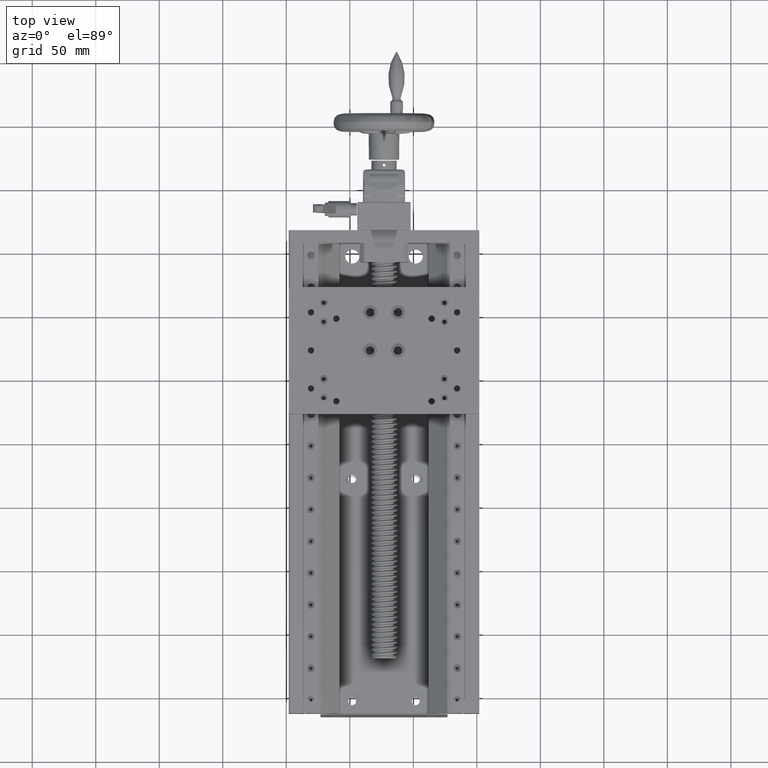
[diagram: clean part render]
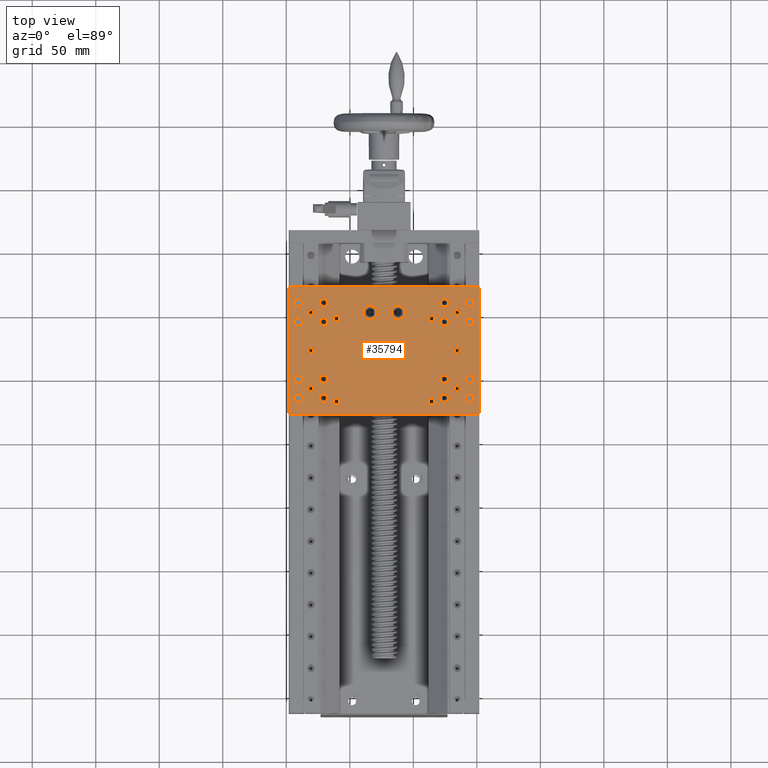
[diagram: same view with one face highlighted and labeled with its STEP entity id]
A machine part, top view. The second image highlights one B-rep face of the part: STEP entity #35794.
In plain terms, the highlighted planar face has unit normal (0, -0, 1).
Its self-contained STEP definition (entity closure, byte-faithful):
#4 = EDGE_CURVE ( 'NONE', #27922, #28650, #18210, .T. ) ;
#25 = AXIS2_PLACEMENT_3D ( 'NONE', #18048, #46215, #14091 ) ;
#145 = CARTESIAN_POINT ( 'NONE',  ( 51.92025159052296601, 121.7865302591139880, 127.5000000000011084 ) ) ;
#160 = CIRCLE ( 'NONE', #36694, 2.499999999999974243 ) ;
#250 = CARTESIAN_POINT ( 'NONE',  ( -60.57974840947702688, 195.7865302544020096, 127.5000000000022737 ) ) ;
#274 = ORIENTED_EDGE ( 'NONE', *, *, #5718, .F. ) ;
#288 = VERTEX_POINT ( 'NONE', #28809 ) ;
#335 = ORIENTED_EDGE ( 'NONE', *, *, #2510, .F. ) ;
#357 = CARTESIAN_POINT ( 'NONE',  ( -34.07974840947702688, 176.2865302544020096, 127.5000000000020037 ) ) ;
#438 = EDGE_LOOP ( 'NONE', ( #14359, #24400 ) ) ;
#604 = FACE_BOUND ( 'NONE', #39906, .T. ) ;
#719 = LINE ( 'NONE', #33614, #42688 ) ;
#757 = CARTESIAN_POINT ( 'NONE',  ( -98.07974840947703399, 219.7865302496900597, 127.5000000000027001 ) ) ;
#851 = ORIENTED_EDGE ( 'NONE', *, *, #45577, .F. ) ;
#860 = CIRCLE ( 'NONE', #37402, 3.250000000000002665 ) ;
#1075 = FACE_BOUND ( 'NONE', #21796, .T. ) ;
#1183 = CARTESIAN_POINT ( 'NONE',  ( -90.57974840947704820, 145.0365302544020381, 127.5000000000025864 ) ) ;
#1185 = AXIS2_PLACEMENT_3D ( 'NONE', #43460, #32621, #24668 ) ;
#1217 = CARTESIAN_POINT ( 'NONE',  ( -80.57974840947703399, 200.7865302544020096, 127.5000000000025011 ) ) ;
#1290 = CARTESIAN_POINT ( 'NONE',  ( 44.42025159052297312, 133.2865302544020096, 127.5000000000011937 ) ) ;
#1307 = ORIENTED_EDGE ( 'NONE', *, *, #10986, .T. ) ;
#1316 = EDGE_CURVE ( 'NONE', #14614, #12409, #18842, .T. ) ;
#1530 = EDGE_CURVE ( 'NONE', #4598, #19973, #39345, .T. ) ;
#1608 = AXIS2_PLACEMENT_3D ( 'NONE', #20255, #30553, #19331 ) ;
#1674 = CARTESIAN_POINT ( 'NONE',  ( -90.57974840947703399, 151.5365302544020381, 127.5000000000025864 ) ) ;
#1676 = AXIS2_PLACEMENT_3D ( 'NONE', #23488, #27474, #34272 ) ;
#1684 = AXIS2_PLACEMENT_3D ( 'NONE', #10683, #46307, #32857 ) ;
#1742 = CARTESIAN_POINT ( 'NONE',  ( 44.42025159052295891, 145.0365302544020381, 127.5000000000011937 ) ) ;
#1980 = ORIENTED_EDGE ( 'NONE', *, *, #24920, .F. ) ;
#2059 = EDGE_LOOP ( 'NONE', ( #28143, #335 ) ) ;
#2159 = ORIENTED_EDGE ( 'NONE', *, *, #44541, .T. ) ;
#2201 = CIRCLE ( 'NONE', #28272, 3.250000000000002665 ) ;
#2294 = EDGE_CURVE ( 'NONE', #4962, #30088, #39456, .T. ) ;
#2360 = EDGE_CURVE ( 'NONE', #12189, #23935, #44321, .T. ) ;
#2510 = EDGE_CURVE ( 'NONE', #25554, #33264, #19537, .T. ) ;
#2534 = AXIS2_PLACEMENT_3D ( 'NONE', #8202, #22410, #4735 ) ;
#2565 = DIRECTION ( 'NONE',  ( 0.7071067811865475727, 0.7071067811865474617, -7.251811311110267644E-15 ) ) ;
#2613 = CARTESIAN_POINT ( 'NONE',  ( -60.57974840947707662, 133.2865302544019812, 127.5000000000022737 ) ) ;
#2645 = EDGE_CURVE ( 'NONE', #41838, #2936, #7023, .T. ) ;
#2648 = EDGE_CURVE ( 'NONE', #10440, #4962, #27914, .T. ) ;
#2666 = AXIS2_PLACEMENT_3D ( 'NONE', #37395, #12578, #30568 ) ;
#2698 = EDGE_CURVE ( 'NONE', #34138, #44998, #23363, .T. ) ;
#2768 = VERTEX_POINT ( 'NONE', #23989 ) ;
#2825 = CARTESIAN_POINT ( 'NONE',  ( -80.57974840947707662, 173.2865302544019812, 127.5000000000025011 ) ) ;
#2929 = CARTESIAN_POINT ( 'NONE',  ( -90.57974840947703399, 208.2865302544020381, 127.5000000000026148 ) ) ;
#2936 = VERTEX_POINT ( 'NONE', #20635 ) ;
#2948 = AXIS2_PLACEMENT_3D ( 'NONE', #6489, #38051, #35214 ) ;
#2983 = CIRCLE ( 'NONE', #35012, 3.250000000000002665 ) ;
#3055 = DIRECTION ( 'NONE',  ( 0.000000000000000000, 1.000000000000000000, 0.000000000000000000 ) ) ;
#3218 = CARTESIAN_POINT ( 'NONE',  ( -85.07974840712104481, 232.7865302520460489, 127.5000000000025580 ) ) ;
#3318 = CIRCLE ( 'NONE', #15191, 5.499999999999976907 ) ;
#3376 = CARTESIAN_POINT ( 'NONE',  ( -98.07974840947703399, 120.7865302544020096, 127.5000000000026716 ) ) ;
#3383 = DIRECTION ( 'NONE',  ( -1.035198053686898557E-14, 1.283222775570023906E-16, -1.000000000000000000 ) ) ;
#3608 = CARTESIAN_POINT ( 'NONE',  ( 34.42025159052298022, 200.7865302544020096, 127.5000000000013074 ) ) ;
#3659 = EDGE_CURVE ( 'NONE', #36224, #43234, #13785, .T. ) ;
#3710 = CIRCLE ( 'NONE', #5190, 3.250000000000002665 ) ;
#3757 = AXIS2_PLACEMENT_3D ( 'NONE', #4943, #15651, #15410 ) ;
#3948 = ORIENTED_EDGE ( 'NONE', *, *, #30857, .F. ) ;
#4026 = EDGE_CURVE ( 'NONE', #11326, #5201, #10813, .T. ) ;
#4110 = EDGE_LOOP ( 'NONE', ( #24801, #1307, #33121, #10694, #36505, #25127, #35228, #43179 ) ) ;
#4163 = CARTESIAN_POINT ( 'NONE',  ( -97.07974840476506984, 120.7865302544020096, 127.5000000000026716 ) ) ;
#4197 = CARTESIAN_POINT ( 'NONE',  ( -60.57974840947703399, 130.7865302544020096, 127.5000000000022737 ) ) ;
#4198 = CARTESIAN_POINT ( 'NONE',  ( -97.07974840476506984, 220.7865302544020096, 127.5000000000026716 ) ) ;
#4199 = DIRECTION ( 'NONE',  ( 0.000000000000000000, 1.000000000000000000, 0.000000000000000000 ) ) ;
#4234 = ORIENTED_EDGE ( 'NONE', *, *, #34077, .F. ) ;
#4243 = DIRECTION ( 'NONE',  ( 0.000000000000000000, -1.000000000000000000, 0.000000000000000000 ) ) ;
#4335 = FACE_BOUND ( 'NONE', #17891, .T. ) ;
#4408 = ORIENTED_EDGE ( 'NONE', *, *, #22275, .F. ) ;
#4478 = VERTEX_POINT ( 'NONE', #25138 ) ;
#4527 = VERTEX_POINT ( 'NONE', #35235 ) ;
#4598 = VERTEX_POINT ( 'NONE', #4163 ) ;
#4613 = CARTESIAN_POINT ( 'NONE',  ( -70.57974840947703399, 148.2865302544020381, 127.5000000000023874 ) ) ;
#4723 = AXIS2_PLACEMENT_3D ( 'NONE', #44362, #22491, #36808 ) ;
#4729 = CARTESIAN_POINT ( 'NONE',  ( 34.42025159052298022, 168.2865302544020381, 127.5000000000013074 ) ) ;
#4735 = DIRECTION ( 'NONE',  ( 0.000000000000000000, 1.000000000000000000, 0.000000000000000000 ) ) ;
#4757 = CARTESIAN_POINT ( 'NONE',  ( -90.57974840947703399, 196.5365302544020096, 127.5000000000026148 ) ) ;
#4865 = CARTESIAN_POINT ( 'NONE',  ( 24.42025159052298022, 208.2865302544020381, 127.5000000000014211 ) ) ;
#4943 = CARTESIAN_POINT ( 'NONE',  ( 44.42025159052297312, 148.2865302544020381, 127.5000000000011937 ) ) ;
#4962 = VERTEX_POINT ( 'NONE', #757 ) ;
#5103 = DIRECTION ( 'NONE',  ( 0.000000000000000000, -1.000000000000000000, 0.000000000000000000 ) ) ;
#5190 = AXIS2_PLACEMENT_3D ( 'NONE', #8903, #23121, #19647 ) ;
#5199 = ORIENTED_EDGE ( 'NONE', *, *, #15454, .F. ) ;
#5201 = VERTEX_POINT ( 'NONE', #1674 ) ;
#5299 = CARTESIAN_POINT ( 'NONE',  ( 24.42025159052298022, 211.5365302544020381, 127.5000000000014211 ) ) ;
#5335 = CIRCLE ( 'NONE', #22417, 3.250000000000002665 ) ;
#5347 = CARTESIAN_POINT ( 'NONE',  ( 44.42025159052297312, 193.2865302544020096, 127.5000000000011937 ) ) ;
#5353 = DIRECTION ( 'NONE',  ( -1.035198053686898557E-14, 1.283222775570023906E-16, -1.000000000000000000 ) ) ;
#5486 = FACE_BOUND ( 'NONE', #28486, .T. ) ;
#5494 = ORIENTED_EDGE ( 'NONE', *, *, #10404, .T. ) ;
#5562 = VERTEX_POINT ( 'NONE', #42645 ) ;
#5635 = EDGE_CURVE ( 'NONE', #7101, #38543, #42132, .T. ) ;
#5699 = VERTEX_POINT ( 'NONE', #2613 ) ;
#5718 = EDGE_CURVE ( 'NONE', #28646, #29427, #3318, .T. ) ;
#5723 = CARTESIAN_POINT ( 'NONE',  ( 44.42025159052297312, 148.2865302544020381, 127.5000000000011937 ) ) ;
#5777 = EDGE_CURVE ( 'NONE', #10932, #17802, #7029, .T. ) ;
#5820 = DIRECTION ( 'NONE',  ( 1.035198053686898557E-14, -1.283222775570023906E-16, 1.000000000000000000 ) ) ;
#5852 = DIRECTION ( 'NONE',  ( 1.035198053686898557E-14, -1.283222775570023906E-16, 1.000000000000000000 ) ) ;
#5931 = ORIENTED_EDGE ( 'NONE', *, *, #4, .F. ) ;
#5964 = EDGE_CURVE ( 'NONE', #5699, #12634, #34634, .T. ) ;
#5988 = ORIENTED_EDGE ( 'NONE', *, *, #39449, .F. ) ;
#6046 = AXIS2_PLACEMENT_3D ( 'NONE', #40383, #41052, #22988 ) ;
#6102 = DIRECTION ( 'NONE',  ( 0.000000000000000000, 1.000000000000000000, 0.000000000000000000 ) ) ;
#6282 = DIRECTION ( 'NONE',  ( 1.035198053686898557E-14, -1.283222775570023906E-16, 1.000000000000000000 ) ) ;
#6456 = DIRECTION ( 'NONE',  ( 0.000000000000000000, 1.000000000000000000, 0.000000000000000000 ) ) ;
#6489 = CARTESIAN_POINT ( 'NONE',  ( 44.42025159052297312, 208.2865302544020381, 127.5000000000011937 ) ) ;
#6771 = CARTESIAN_POINT ( 'NONE',  ( 34.42025159052298022, 200.7865302544020096, 127.5000000000013074 ) ) ;
#6830 = CARTESIAN_POINT ( 'NONE',  ( -70.57974840947703399, 148.2865302544020381, 127.5000000000023874 ) ) ;
#6880 = VERTEX_POINT ( 'NONE', #38887 ) ;
#7023 = CIRCLE ( 'NONE', #32384, 3.250000000000002665 ) ;
#7029 = CIRCLE ( 'NONE', #12966, 2.499999999999974243 ) ;
#7101 = VERTEX_POINT ( 'NONE', #16250 ) ;
#7219 = CARTESIAN_POINT ( 'NONE',  ( -80.57974840947703399, 170.7865302544020096, 127.5000000000025011 ) ) ;
#7236 = CARTESIAN_POINT ( 'NONE',  ( -70.57974840947706241, 145.0365302544020381, 127.5000000000023874 ) ) ;
#7282 = CIRCLE ( 'NONE', #33388, 2.499999999999974243 ) ;
#7299 = ORIENTED_EDGE ( 'NONE', *, *, #5964, .T. ) ;
#7421 = DIRECTION ( 'NONE',  ( 0.000000000000000000, -1.000000000000000000, 0.000000000000000000 ) ) ;
#7440 = AXIS2_PLACEMENT_3D ( 'NONE', #37054, #36598, #36359 ) ;
#7523 = VERTEX_POINT ( 'NONE', #20512 ) ;
#7533 = ORIENTED_EDGE ( 'NONE', *, *, #14040, .T. ) ;
#7594 = CARTESIAN_POINT ( 'NONE',  ( -70.57974840947703399, 193.2865302544020096, 127.5000000000023874 ) ) ;
#7692 = DIRECTION ( 'NONE',  ( 1.035198053686898557E-14, -1.283222775570023906E-16, 1.000000000000000000 ) ) ;
#7774 = VERTEX_POINT ( 'NONE', #41520 ) ;
#7824 = FACE_BOUND ( 'NONE', #42363, .T. ) ;
#7826 = ORIENTED_EDGE ( 'NONE', *, *, #29641, .F. ) ;
#7858 = VERTEX_POINT ( 'NONE', #21309 ) ;
#7915 = CARTESIAN_POINT ( 'NONE',  ( 24.42025159052297312, 148.2865302544020381, 127.5000000000013927 ) ) ;
#7924 = VERTEX_POINT ( 'NONE', #39377 ) ;
#7997 = ORIENTED_EDGE ( 'NONE', *, *, #24745, .T. ) ;
#8046 = FACE_BOUND ( 'NONE', #44640, .T. ) ;
#8202 = CARTESIAN_POINT ( 'NONE',  ( -12.07974840947702688, 170.7865302544020096, 127.5000000000017764 ) ) ;
#8344 = CIRCLE ( 'NONE', #1676, 2.499999999999974243 ) ;
#8469 = CARTESIAN_POINT ( 'NONE',  ( 24.42025159052296601, 133.2865302544020096, 127.5000000000013927 ) ) ;
#8573 = EDGE_CURVE ( 'NONE', #8885, #41599, #24290, .T. ) ;
#8600 = CARTESIAN_POINT ( 'NONE',  ( -90.57974840947703399, 211.5365302544020381, 127.5000000000026148 ) ) ;
#8605 = DIRECTION ( 'NONE',  ( -1.000000000000000000, -7.380583014590811651E-17, 1.038393218549974683E-14 ) ) ;
#8823 = ORIENTED_EDGE ( 'NONE', *, *, #19725, .F. ) ;
#8885 = VERTEX_POINT ( 'NONE', #20685 ) ;
#8897 = ORIENTED_EDGE ( 'NONE', *, *, #5777, .T. ) ;
#8903 = CARTESIAN_POINT ( 'NONE',  ( -90.57974840947703399, 133.2865302544020096, 127.5000000000025864 ) ) ;
#8984 = DIRECTION ( 'NONE',  ( 1.035198053686898557E-14, -1.283222775570023906E-16, 1.000000000000000000 ) ) ;
#9151 = EDGE_CURVE ( 'NONE', #2768, #7774, #22734, .T. ) ;
#9194 = DIRECTION ( 'NONE',  ( 1.035198053686898557E-14, -1.283222775569903851E-16, 1.000000000000000000 ) ) ;
#9225 = EDGE_LOOP ( 'NONE', ( #18935, #13306 ) ) ;
#9250 = CARTESIAN_POINT ( 'NONE',  ( 44.42025159052297312, 211.5365302544020381, 127.5000000000011937 ) ) ;
#9453 = VERTEX_POINT ( 'NONE', #357 ) ;
#9652 = DIRECTION ( 'NONE',  ( 0.000000000000000000, 1.000000000000000000, 0.000000000000000000 ) ) ;
#9727 = CIRCLE ( 'NONE', #38136, 5.499999999999976907 ) ;
#9737 = DIRECTION ( 'NONE',  ( 0.000000000000000000, 1.000000000000000000, 0.000000000000000000 ) ) ;
#9772 = CIRCLE ( 'NONE', #41939, 3.250000000000002665 ) ;
#9794 = DIRECTION ( 'NONE',  ( 0.000000000000000000, 1.000000000000000000, 0.000000000000000000 ) ) ;
#9813 = CIRCLE ( 'NONE', #1608, 3.250000000000002665 ) ;
#9945 = DIRECTION ( 'NONE',  ( 1.035198053686898557E-14, -1.283222775570023906E-16, 1.000000000000000000 ) ) ;
#10067 = CARTESIAN_POINT ( 'NONE',  ( -70.57974840947703399, 196.5365302544020096, 127.5000000000023874 ) ) ;
#10274 = EDGE_CURVE ( 'NONE', #5201, #11326, #39354, .T. ) ;
#10320 = AXIS2_PLACEMENT_3D ( 'NONE', #250, #39275, #24481 ) ;
#10401 = VERTEX_POINT ( 'NONE', #7236 ) ;
#10404 = EDGE_CURVE ( 'NONE', #31713, #7924, #25847, .T. ) ;
#10440 = VERTEX_POINT ( 'NONE', #4198 ) ;
#10482 = DIRECTION ( 'NONE',  ( -1.035198053686898557E-14, 1.283222775570023906E-16, -1.000000000000000000 ) ) ;
#10528 = CIRCLE ( 'NONE', #36675, 3.250000000000002665 ) ;
#10638 = ORIENTED_EDGE ( 'NONE', *, *, #28001, .T. ) ;
#10683 = CARTESIAN_POINT ( 'NONE',  ( 34.42025159052298022, 140.7865302544020096, 127.5000000000012790 ) ) ;
#10694 = ORIENTED_EDGE ( 'NONE', *, *, #2648, .T. ) ;
#10702 = CARTESIAN_POINT ( 'NONE',  ( 24.42025159052297312, 193.2865302544020096, 127.5000000000014211 ) ) ;
#10743 = CARTESIAN_POINT ( 'NONE',  ( -34.07974840947706241, 165.2865302544020381, 127.5000000000020037 ) ) ;
#10764 = CARTESIAN_POINT ( 'NONE',  ( 34.42025159052292338, 173.2865302544019812, 127.5000000000013074 ) ) ;
#10813 = CIRCLE ( 'NONE', #1185, 3.250000000000002665 ) ;
#10862 = FACE_BOUND ( 'NONE', #40597, .T. ) ;
#10932 = VERTEX_POINT ( 'NONE', #33880 ) ;
#10961 = AXIS2_PLACEMENT_3D ( 'NONE', #21428, #35738, #17940 ) ;
#10986 = EDGE_CURVE ( 'NONE', #5562, #27320, #19138, .T. ) ;
#11020 = ORIENTED_EDGE ( 'NONE', *, *, #25350, .T. ) ;
#11075 = CARTESIAN_POINT ( 'NONE',  ( -34.07974840947702688, 170.7865302544020096, 127.5000000000020037 ) ) ;
#11079 = FACE_BOUND ( 'NONE', #27562, .T. ) ;
#11159 = DIRECTION ( 'NONE',  ( 1.035198053686898557E-14, -1.283222775570023906E-16, 1.000000000000000000 ) ) ;
#11185 = CIRCLE ( 'NONE', #32831, 2.499999999999974243 ) ;
#11326 = VERTEX_POINT ( 'NONE', #1183 ) ;
#11338 = AXIS2_PLACEMENT_3D ( 'NONE', #32513, #32285, #43338 ) ;
#11365 = ORIENTED_EDGE ( 'NONE', *, *, #30707, .F. ) ;
#11442 = DIRECTION ( 'NONE',  ( 0.000000000000000000, 1.000000000000000000, 0.000000000000000000 ) ) ;
#11455 = DIRECTION ( 'NONE',  ( -1.035198053686898557E-14, 1.283222775570023906E-16, -1.000000000000000000 ) ) ;
#11540 = ORIENTED_EDGE ( 'NONE', *, *, #20724, .F. ) ;
#11542 = FACE_BOUND ( 'NONE', #22370, .T. ) ;
#11629 = DIRECTION ( 'NONE',  ( 0.000000000000000000, 1.000000000000000000, 0.000000000000000000 ) ) ;
#11829 = VERTEX_POINT ( 'NONE', #5299 ) ;
#11847 = AXIS2_PLACEMENT_3D ( 'NONE', #6771, #10482, #24018 ) ;
#11903 = CARTESIAN_POINT ( 'NONE',  ( 34.42025159052292338, 203.2865302544019812, 127.5000000000013074 ) ) ;
#12187 = VERTEX_POINT ( 'NONE', #37020 ) ;
#12189 = VERTEX_POINT ( 'NONE', #15487 ) ;
#12247 = DIRECTION ( 'NONE',  ( 0.000000000000000000, -1.000000000000000000, 0.000000000000000000 ) ) ;
#12395 = ORIENTED_EDGE ( 'NONE', *, *, #23982, .F. ) ;
#12409 = VERTEX_POINT ( 'NONE', #30091 ) ;
#12505 = DIRECTION ( 'NONE',  ( 1.035198053686898557E-14, -1.283222775570023906E-16, 1.000000000000000000 ) ) ;
#12564 = DIRECTION ( 'NONE',  ( 1.035198053686898557E-14, -1.283222775570023906E-16, 1.000000000000000000 ) ) ;
#12578 = DIRECTION ( 'NONE',  ( -1.035198053686898557E-14, 1.283222775570023906E-16, -1.000000000000000000 ) ) ;
#12634 = VERTEX_POINT ( 'NONE', #24204 ) ;
#12671 = DIRECTION ( 'NONE',  ( 1.035198053686898557E-14, -1.283222775570023906E-16, 1.000000000000000000 ) ) ;
#12850 = CIRCLE ( 'NONE', #40530, 3.250000000000002665 ) ;
#12936 = ORIENTED_EDGE ( 'NONE', *, *, #20713, .T. ) ;
#12966 = AXIS2_PLACEMENT_3D ( 'NONE', #31985, #35281, #17721 ) ;
#12977 = DIRECTION ( 'NONE',  ( 1.035198053686898557E-14, -1.283222775570023906E-16, 1.000000000000000000 ) ) ;
#12992 = VERTEX_POINT ( 'NONE', #145 ) ;
#13072 = CARTESIAN_POINT ( 'NONE',  ( 44.42025159052297312, 133.2865302544020096, 127.5000000000011937 ) ) ;
#13087 = CARTESIAN_POINT ( 'NONE',  ( -70.57974840947701978, 208.2865302544020381, 127.5000000000023874 ) ) ;
#13129 = VERTEX_POINT ( 'NONE', #19197 ) ;
#13294 = CARTESIAN_POINT ( 'NONE',  ( 50.92025158581100897, 220.7865302544020381, 127.5000000000011369 ) ) ;
#13306 = ORIENTED_EDGE ( 'NONE', *, *, #43745, .F. ) ;
#13327 = CARTESIAN_POINT ( 'NONE',  ( 24.42025159052295891, 145.0365302544020381, 127.5000000000013927 ) ) ;
#13472 = CARTESIAN_POINT ( 'NONE',  ( -70.57974840947703399, 193.2865302544020096, 127.5000000000023874 ) ) ;
#13719 = AXIS2_PLACEMENT_3D ( 'NONE', #16518, #12564, #16069 ) ;
#13785 = CIRCLE ( 'NONE', #36938, 3.250000000000002665 ) ;
#13902 = DIRECTION ( 'NONE',  ( 0.000000000000000000, 1.000000000000000000, 0.000000000000000000 ) ) ;
#13946 = CARTESIAN_POINT ( 'NONE',  ( -70.57974840947703399, 133.2865302544020096, 127.5000000000023874 ) ) ;
#13959 = DIRECTION ( 'NONE',  ( -1.035198053686898557E-14, 1.283222775570023906E-16, -1.000000000000000000 ) ) ;
#14040 = EDGE_CURVE ( 'NONE', #17802, #10932, #44750, .T. ) ;
#14091 = DIRECTION ( 'NONE',  ( 0.000000000000000000, 1.000000000000000000, 0.000000000000000000 ) ) ;
#14139 = CIRCLE ( 'NONE', #26073, 3.250000000000002665 ) ;
#14284 = AXIS2_PLACEMENT_3D ( 'NONE', #31668, #9945, #13902 ) ;
#14352 = AXIS2_PLACEMENT_3D ( 'NONE', #7219, #13959, #20958 ) ;
#14359 = ORIENTED_EDGE ( 'NONE', *, *, #25742, .T. ) ;
#14418 = ORIENTED_EDGE ( 'NONE', *, *, #28206, .T. ) ;
#14530 = VERTEX_POINT ( 'NONE', #41228 ) ;
#14614 = VERTEX_POINT ( 'NONE', #37937 ) ;
#14625 = ORIENTED_EDGE ( 'NONE', *, *, #42690, .F. ) ;
#14713 = CARTESIAN_POINT ( 'NONE',  ( -12.07974840947706419, 165.2865302544020381, 127.5000000000017764 ) ) ;
#14864 = CIRCLE ( 'NONE', #38810, 3.250000000000002665 ) ;
#14928 = DIRECTION ( 'NONE',  ( 1.035198053686898557E-14, -1.283222775570023906E-16, 1.000000000000000000 ) ) ;
#15108 = ORIENTED_EDGE ( 'NONE', *, *, #15622, .F. ) ;
#15136 = AXIS2_PLACEMENT_3D ( 'NONE', #10702, #32196, #17693 ) ;
#15181 = VECTOR ( 'NONE', #42022, 1000.000000000000000 ) ;
#15191 = AXIS2_PLACEMENT_3D ( 'NONE', #41165, #31054, #31280 ) ;
#15249 = EDGE_CURVE ( 'NONE', #28778, #4527, #28911, .T. ) ;
#15268 = DIRECTION ( 'NONE',  ( 1.035198053686898557E-14, -1.283222775570023906E-16, 1.000000000000000000 ) ) ;
#15401 = VERTEX_POINT ( 'NONE', #43045 ) ;
#15410 = DIRECTION ( 'NONE',  ( 0.000000000000000000, 1.000000000000000000, 0.000000000000000000 ) ) ;
#15454 = EDGE_CURVE ( 'NONE', #13129, #26371, #16370, .T. ) ;
#15487 = CARTESIAN_POINT ( 'NONE',  ( 34.42025159052298022, 138.2865302544020381, 127.5000000000012790 ) ) ;
#15574 = CARTESIAN_POINT ( 'NONE',  ( 24.42025159052298022, 208.2865302544020381, 127.5000000000014211 ) ) ;
#15622 = EDGE_CURVE ( 'NONE', #288, #32432, #41040, .T. ) ;
#15651 = DIRECTION ( 'NONE',  ( 1.035198053686898557E-14, -1.283222775570023906E-16, 1.000000000000000000 ) ) ;
#15806 = CARTESIAN_POINT ( 'NONE',  ( 14.42025159052291450, 133.2865302544019812, 127.5000000000015064 ) ) ;
#15952 = DIRECTION ( 'NONE',  ( 1.035198053686898557E-14, -1.283222775570023906E-16, 1.000000000000000000 ) ) ;
#16069 = DIRECTION ( 'NONE',  ( 0.000000000000000000, 1.000000000000000000, 0.000000000000000000 ) ) ;
#16250 = CARTESIAN_POINT ( 'NONE',  ( -12.07974840947702688, 176.2865302544020096, 127.5000000000017764 ) ) ;
#16285 = VERTEX_POINT ( 'NONE', #2825 ) ;
#16370 = CIRCLE ( 'NONE', #39552, 3.250000000000002665 ) ;
#16391 = EDGE_CURVE ( 'NONE', #7858, #16808, #43368, .T. ) ;
#16403 = FACE_BOUND ( 'NONE', #37552, .T. ) ;
#16406 = VERTEX_POINT ( 'NONE', #39048 ) ;
#16518 = CARTESIAN_POINT ( 'NONE',  ( 24.42025159052297312, 148.2865302544020381, 127.5000000000013927 ) ) ;
#16789 = DIRECTION ( 'NONE',  ( 0.000000000000000000, 1.000000000000000000, 0.000000000000000000 ) ) ;
#16808 = VERTEX_POINT ( 'NONE', #11903 ) ;
#16999 = CARTESIAN_POINT ( 'NONE',  ( -70.57974840947701978, 208.2865302544020381, 127.5000000000023874 ) ) ;
#17169 = CARTESIAN_POINT ( 'NONE',  ( 14.42025159052296601, 130.7865302544020096, 127.5000000000015064 ) ) ;
#17226 = ORIENTED_EDGE ( 'NONE', *, *, #16391, .T. ) ;
#17304 = EDGE_CURVE ( 'NONE', #28650, #27922, #30556, .T. ) ;
#17361 = CARTESIAN_POINT ( 'NONE',  ( -12.07974840947702688, 170.7865302544020096, 127.5000000000017764 ) ) ;
#17466 = VERTEX_POINT ( 'NONE', #19938 ) ;
#17678 = VECTOR ( 'NONE', #19611, 1000.000000000000000 ) ;
#17693 = DIRECTION ( 'NONE',  ( 0.000000000000000000, 1.000000000000000000, 0.000000000000000000 ) ) ;
#17721 = DIRECTION ( 'NONE',  ( 0.000000000000000000, -1.000000000000000000, 0.000000000000000000 ) ) ;
#17767 = EDGE_CURVE ( 'NONE', #12187, #7523, #11185, .T. ) ;
#17802 = VERTEX_POINT ( 'NONE', #36311 ) ;
#17844 = EDGE_LOOP ( 'NONE', ( #31593, #11540 ) ) ;
#17854 = EDGE_CURVE ( 'NONE', #15401, #17466, #28350, .T. ) ;
#17891 = EDGE_LOOP ( 'NONE', ( #1980, #4234 ) ) ;
#17940 = DIRECTION ( 'NONE',  ( 0.000000000000000000, -1.000000000000000000, 0.000000000000000000 ) ) ;
#17977 = ORIENTED_EDGE ( 'NONE', *, *, #21446, .T. ) ;
#18048 = CARTESIAN_POINT ( 'NONE',  ( -70.57974840947703399, 133.2865302544020096, 127.5000000000023874 ) ) ;
#18210 = CIRCLE ( 'NONE', #21934, 3.250000000000002665 ) ;
#18340 = CARTESIAN_POINT ( 'NONE',  ( -90.57974840947703399, 193.2865302544020096, 127.5000000000026148 ) ) ;
#18398 = DIRECTION ( 'NONE',  ( 1.007490921181384814E-16, 1.000000000000000000, 1.283222775569893497E-16 ) ) ;
#18402 = ORIENTED_EDGE ( 'NONE', *, *, #4026, .F. ) ;
#18595 = CIRCLE ( 'NONE', #3757, 3.250000000000002665 ) ;
#18671 = VECTOR ( 'NONE', #18398, 1000.000000000000000 ) ;
#18733 = CARTESIAN_POINT ( 'NONE',  ( 50.92025158581100897, 120.7865302544020238, 127.5000000000011084 ) ) ;
#18761 = FACE_BOUND ( 'NONE', #22557, .T. ) ;
#18842 = CIRCLE ( 'NONE', #4723, 5.499999999999976907 ) ;
#18935 = ORIENTED_EDGE ( 'NONE', *, *, #2645, .F. ) ;
#18991 = CARTESIAN_POINT ( 'NONE',  ( 14.42025159052297312, 195.7865302544020096, 127.5000000000015064 ) ) ;
#18994 = FACE_BOUND ( 'NONE', #17844, .T. ) ;
#19001 = DIRECTION ( 'NONE',  ( 0.000000000000000000, 1.000000000000000000, 0.000000000000000000 ) ) ;
#19004 = EDGE_CURVE ( 'NONE', #43234, #36224, #2983, .T. ) ;
#19128 = AXIS2_PLACEMENT_3D ( 'NONE', #42116, #30346, #16789 ) ;
#19138 = LINE ( 'NONE', #44514, #17678 ) ;
#19197 = CARTESIAN_POINT ( 'NONE',  ( 44.42025159052297312, 151.5365302544020381, 127.5000000000011937 ) ) ;
#19221 = DIRECTION ( 'NONE',  ( -1.035198053686898557E-14, 1.283222775570023906E-16, -1.000000000000000000 ) ) ;
#19249 = DIRECTION ( 'NONE',  ( 0.000000000000000000, 1.000000000000000000, 0.000000000000000000 ) ) ;
#19331 = DIRECTION ( 'NONE',  ( 0.000000000000000000, 1.000000000000000000, 0.000000000000000000 ) ) ;
#19380 = EDGE_LOOP ( 'NONE', ( #17226, #41246 ) ) ;
#19483 = DIRECTION ( 'NONE',  ( -1.035198053686898557E-14, 1.283222775570023906E-16, -1.000000000000000000 ) ) ;
#19505 = EDGE_LOOP ( 'NONE', ( #23276, #7826 ) ) ;
#19537 = CIRCLE ( 'NONE', #45802, 3.250000000000002665 ) ;
#19611 = DIRECTION ( 'NONE',  ( -0.7071067811865474617, 0.7071067811865475727, 7.433286416385967466E-15 ) ) ;
#19647 = DIRECTION ( 'NONE',  ( 0.000000000000000000, 1.000000000000000000, 0.000000000000000000 ) ) ;
#19682 = DIRECTION ( 'NONE',  ( 0.000000000000000000, 1.000000000000000000, 0.000000000000000000 ) ) ;
#19690 = FACE_BOUND ( 'NONE', #38145, .T. ) ;
#19717 = DIRECTION ( 'NONE',  ( 1.035198053686898557E-14, -1.283222775570023906E-16, 1.000000000000000000 ) ) ;
#19725 = EDGE_CURVE ( 'NONE', #35869, #22199, #2201, .T. ) ;
#19938 = CARTESIAN_POINT ( 'NONE',  ( -90.57974840947704820, 130.0365302544020096, 127.5000000000025864 ) ) ;
#19952 = CARTESIAN_POINT ( 'NONE',  ( 24.42025159052296601, 205.0365302544020096, 127.5000000000014211 ) ) ;
#19973 = VERTEX_POINT ( 'NONE', #18733 ) ;
#20203 = ORIENTED_EDGE ( 'NONE', *, *, #19004, .F. ) ;
#20231 = CIRCLE ( 'NONE', #26945, 2.499999999999974243 ) ;
#20255 = CARTESIAN_POINT ( 'NONE',  ( 44.42025159052297312, 193.2865302544020096, 127.5000000000011937 ) ) ;
#20313 = EDGE_CURVE ( 'NONE', #34298, #10401, #14139, .T. ) ;
#20390 = CARTESIAN_POINT ( 'NONE',  ( -85.07974840712107323, 108.7865302567579846, 127.5000000000025295 ) ) ;
#20458 = EDGE_CURVE ( 'NONE', #26371, #13129, #18595, .T. ) ;
#20512 = CARTESIAN_POINT ( 'NONE',  ( 14.42025159052292160, 198.2865302544019812, 127.5000000000015064 ) ) ;
#20635 = CARTESIAN_POINT ( 'NONE',  ( 24.42025159052295180, 130.0365302544020096, 127.5000000000013927 ) ) ;
#20680 = CARTESIAN_POINT ( 'NONE',  ( 24.42025159052297312, 193.2865302544020096, 127.5000000000014211 ) ) ;
#20685 = CARTESIAN_POINT ( 'NONE',  ( -90.57974840947704820, 205.0365302544020096, 127.5000000000026148 ) ) ;
#20695 = DIRECTION ( 'NONE',  ( 1.035198053686898557E-14, -1.283222775570023906E-16, 1.000000000000000000 ) ) ;
#20710 = CIRCLE ( 'NONE', #37920, 2.499999999999974243 ) ;
#20711 = ORIENTED_EDGE ( 'NONE', *, *, #20313, .F. ) ;
#20713 = EDGE_CURVE ( 'NONE', #12634, #5699, #40318, .T. ) ;
#20724 = EDGE_CURVE ( 'NONE', #44998, #34138, #14864, .T. ) ;
#20758 = EDGE_LOOP ( 'NONE', ( #5494, #14418 ) ) ;
#20861 = CIRCLE ( 'NONE', #24645, 2.499999999999974243 ) ;
#20881 = CARTESIAN_POINT ( 'NONE',  ( -70.57974840947703399, 151.5365302544020381, 127.5000000000023874 ) ) ;
#20909 = CIRCLE ( 'NONE', #6046, 5.499999999999976907 ) ;
#20958 = DIRECTION ( 'NONE',  ( 0.000000000000000000, -1.000000000000000000, 0.000000000000000000 ) ) ;
#21180 = CARTESIAN_POINT ( 'NONE',  ( 24.42025159052297312, 196.5365302544020096, 127.5000000000014211 ) ) ;
#21309 = CARTESIAN_POINT ( 'NONE',  ( 34.42025159052298022, 198.2865302544020381, 127.5000000000013074 ) ) ;
#21428 = CARTESIAN_POINT ( 'NONE',  ( -80.57974840947703399, 200.7865302544020096, 127.5000000000025011 ) ) ;
#21446 = EDGE_CURVE ( 'NONE', #34540, #38536, #20861, .T. ) ;
#21475 = CIRCLE ( 'NONE', #33448, 2.499999999999974243 ) ;
#21676 = LINE ( 'NONE', #29402, #18671 ) ;
#21796 = EDGE_LOOP ( 'NONE', ( #20203, #31718 ) ) ;
#21909 = AXIS2_PLACEMENT_3D ( 'NONE', #44457, #5353, #23971 ) ;
#21934 = AXIS2_PLACEMENT_3D ( 'NONE', #18340, #22055, #19249 ) ;
#21985 = CARTESIAN_POINT ( 'NONE',  ( -34.07974840947705530, 195.2865302544020381, 127.5000000000020037 ) ) ;
#22018 = FACE_BOUND ( 'NONE', #22044, .T. ) ;
#22044 = EDGE_LOOP ( 'NONE', ( #11020, #17977 ) ) ;
#22055 = DIRECTION ( 'NONE',  ( 1.035198053686898557E-14, -1.283222775570023906E-16, 1.000000000000000000 ) ) ;
#22139 = DIRECTION ( 'NONE',  ( 0.000000000000000000, 1.000000000000000000, 0.000000000000000000 ) ) ;
#22199 = VERTEX_POINT ( 'NONE', #21180 ) ;
#22244 = FACE_BOUND ( 'NONE', #23610, .T. ) ;
#22275 = EDGE_CURVE ( 'NONE', #11829, #37101, #5335, .T. ) ;
#22370 = EDGE_LOOP ( 'NONE', ( #45644, #30108 ) ) ;
#22410 = DIRECTION ( 'NONE',  ( 1.035198053686898557E-14, -1.283222775570023906E-16, 1.000000000000000000 ) ) ;
#22417 = AXIS2_PLACEMENT_3D ( 'NONE', #4865, #43487, #43944 ) ;
#22473 = ORIENTED_EDGE ( 'NONE', *, *, #17304, .F. ) ;
#22491 = DIRECTION ( 'NONE',  ( 1.035198053686898557E-14, -1.283222775570023906E-16, 1.000000000000000000 ) ) ;
#22557 = EDGE_LOOP ( 'NONE', ( #44067, #851 ) ) ;
#22714 = CARTESIAN_POINT ( 'NONE',  ( 24.42025159052295891, 190.0365302544020096, 127.5000000000014211 ) ) ;
#22734 = CIRCLE ( 'NONE', #2666, 2.499999999999974243 ) ;
#22807 = DIRECTION ( 'NONE',  ( 1.035198053686898557E-14, -1.283222775570023906E-16, 1.000000000000000000 ) ) ;
#22988 = DIRECTION ( 'NONE',  ( 0.000000000000000000, 1.000000000000000000, 0.000000000000000000 ) ) ;
#22994 = CIRCLE ( 'NONE', #2948, 3.250000000000002665 ) ;
#23121 = DIRECTION ( 'NONE',  ( 1.035198053686898557E-14, -1.283222775570023906E-16, 1.000000000000000000 ) ) ;
#23191 = AXIS2_PLACEMENT_3D ( 'NONE', #17361, #45527, #9652 ) ;
#23249 = AXIS2_PLACEMENT_3D ( 'NONE', #16999, #5820, #3055 ) ;
#23276 = ORIENTED_EDGE ( 'NONE', *, *, #17854, .F. ) ;
#23281 = EDGE_LOOP ( 'NONE', ( #20711, #5988 ) ) ;
#23363 = CIRCLE ( 'NONE', #13719, 3.250000000000002665 ) ;
#23380 = DIRECTION ( 'NONE',  ( 1.035198053686898557E-14, -1.283222775570023906E-16, 1.000000000000000000 ) ) ;
#23405 = FACE_BOUND ( 'NONE', #20758, .T. ) ;
#23488 = CARTESIAN_POINT ( 'NONE',  ( 34.42025159052298022, 170.7865302544020096, 127.5000000000013074 ) ) ;
#23610 = EDGE_LOOP ( 'NONE', ( #15108, #3948 ) ) ;
#23799 = ORIENTED_EDGE ( 'NONE', *, *, #41911, .F. ) ;
#23935 = VERTEX_POINT ( 'NONE', #35640 ) ;
#23955 = CIRCLE ( 'NONE', #30692, 3.250000000000002665 ) ;
#23971 = DIRECTION ( 'NONE',  ( 0.000000000000000000, -1.000000000000000000, 0.000000000000000000 ) ) ;
#23982 = EDGE_CURVE ( 'NONE', #30497, #9453, #9727, .T. ) ;
#23989 = CARTESIAN_POINT ( 'NONE',  ( -80.57974840947703399, 138.2865302544020381, 127.5000000000024727 ) ) ;
#24018 = DIRECTION ( 'NONE',  ( 0.000000000000000000, -1.000000000000000000, 0.000000000000000000 ) ) ;
#24029 = CIRCLE ( 'NONE', #33766, 3.250000000000002665 ) ;
#24042 = EDGE_CURVE ( 'NONE', #7523, #12187, #35106, .T. ) ;
#24131 = AXIS2_PLACEMENT_3D ( 'NONE', #26693, #9194, #30208 ) ;
#24204 = CARTESIAN_POINT ( 'NONE',  ( -60.57974840947703399, 128.2865302544020381, 127.5000000000022737 ) ) ;
#24241 = CARTESIAN_POINT ( 'NONE',  ( -98.07974840947703399, 121.7865302591139596, 127.5000000000026716 ) ) ;
#24290 = CIRCLE ( 'NONE', #36273, 3.250000000000002665 ) ;
#24338 = EDGE_CURVE ( 'NONE', #27320, #10440, #719, .T. ) ;
#24400 = ORIENTED_EDGE ( 'NONE', *, *, #24826, .T. ) ;
#24450 = DIRECTION ( 'NONE',  ( -1.035198053686898557E-14, 1.283222775570023906E-16, -1.000000000000000000 ) ) ;
#24481 = DIRECTION ( 'NONE',  ( 0.000000000000000000, -1.000000000000000000, 0.000000000000000000 ) ) ;
#24525 = EDGE_CURVE ( 'NONE', #19973, #12992, #34544, .T. ) ;
#24645 = AXIS2_PLACEMENT_3D ( 'NONE', #36422, #19483, #33762 ) ;
#24668 = DIRECTION ( 'NONE',  ( 0.000000000000000000, 1.000000000000000000, 0.000000000000000000 ) ) ;
#24688 = EDGE_LOOP ( 'NONE', ( #31372, #8823 ) ) ;
#24745 = EDGE_CURVE ( 'NONE', #23935, #12189, #26935, .T. ) ;
#24801 = ORIENTED_EDGE ( 'NONE', *, *, #41528, .T. ) ;
#24826 = EDGE_CURVE ( 'NONE', #32152, #4478, #160, .T. ) ;
#24920 = EDGE_CURVE ( 'NONE', #29744, #14530, #31446, .T. ) ;
#24921 = CARTESIAN_POINT ( 'NONE',  ( 34.42025159052298022, 140.7865302544020096, 127.5000000000012790 ) ) ;
#25006 = DIRECTION ( 'NONE',  ( 0.000000000000000000, 1.000000000000000000, 0.000000000000000000 ) ) ;
#25088 = FACE_BOUND ( 'NONE', #19380, .T. ) ;
#25127 = ORIENTED_EDGE ( 'NONE', *, *, #46105, .T. ) ;
#25138 = CARTESIAN_POINT ( 'NONE',  ( 14.42025159052296601, 128.2865302544020381, 127.5000000000015064 ) ) ;
#25323 = DIRECTION ( 'NONE',  ( 1.035198053686898557E-14, -1.283222775570023906E-16, 1.000000000000000000 ) ) ;
#25350 = EDGE_CURVE ( 'NONE', #38536, #34540, #8344, .T. ) ;
#25462 = DIRECTION ( 'NONE',  ( 1.035198053686898557E-14, -1.283222775570023906E-16, 1.000000000000000000 ) ) ;
#25527 = CARTESIAN_POINT ( 'NONE',  ( 14.42025159052297312, 195.7865302544020096, 127.5000000000015064 ) ) ;
#25550 = FACE_BOUND ( 'NONE', #2059, .T. ) ;
#25554 = VERTEX_POINT ( 'NONE', #43456 ) ;
#25570 = CIRCLE ( 'NONE', #15136, 3.250000000000002665 ) ;
#25604 = CARTESIAN_POINT ( 'NONE',  ( -98.07974840947703399, 220.7865302544020096, 127.5000000000027001 ) ) ;
#25742 = EDGE_CURVE ( 'NONE', #4478, #32152, #33736, .T. ) ;
#25778 = FACE_BOUND ( 'NONE', #19505, .T. ) ;
#25826 = CARTESIAN_POINT ( 'NONE',  ( 44.42025159052297312, 208.2865302544020381, 127.5000000000011937 ) ) ;
#25847 = CIRCLE ( 'NONE', #10961, 2.499999999999974243 ) ;
#26005 = FACE_BOUND ( 'NONE', #438, .T. ) ;
#26073 = AXIS2_PLACEMENT_3D ( 'NONE', #6830, #25462, #25006 ) ;
#26120 = ORIENTED_EDGE ( 'NONE', *, *, #1316, .F. ) ;
#26293 = DIRECTION ( 'NONE',  ( 0.000000000000000000, 1.000000000000000000, 0.000000000000000000 ) ) ;
#26371 = VERTEX_POINT ( 'NONE', #1742 ) ;
#26561 = DIRECTION ( 'NONE',  ( 0.000000000000000000, 1.000000000000000000, 0.000000000000000000 ) ) ;
#26693 = CARTESIAN_POINT ( 'NONE',  ( -23.07974840947702688, 170.7865302544020096, 127.5000000000018900 ) ) ;
#26747 = CIRCLE ( 'NONE', #30495, 3.250000000000002665 ) ;
#26935 = CIRCLE ( 'NONE', #43455, 2.499999999999974243 ) ;
#26945 = AXIS2_PLACEMENT_3D ( 'NONE', #44822, #19221, #12247 ) ;
#27222 = EDGE_LOOP ( 'NONE', ( #4408, #28930 ) ) ;
#27314 = DIRECTION ( 'NONE',  ( 1.035198053686898557E-14, -1.283222775570023906E-16, 1.000000000000000000 ) ) ;
#27315 = ORIENTED_EDGE ( 'NONE', *, *, #5635, .F. ) ;
#27320 = VERTEX_POINT ( 'NONE', #13294 ) ;
#27474 = DIRECTION ( 'NONE',  ( -1.035198053686898557E-14, 1.283222775570023906E-16, -1.000000000000000000 ) ) ;
#27562 = EDGE_LOOP ( 'NONE', ( #22473, #5931 ) ) ;
#27674 = CARTESIAN_POINT ( 'NONE',  ( 24.42025159052296601, 133.2865302544020096, 127.5000000000013927 ) ) ;
#27676 = VECTOR ( 'NONE', #2565, 1000.000000000000000 ) ;
#27862 = DIRECTION ( 'NONE',  ( 0.000000000000000000, -1.000000000000000000, 0.000000000000000000 ) ) ;
#27914 = LINE ( 'NONE', #3218, #15181 ) ;
#27922 = VERTEX_POINT ( 'NONE', #36774 ) ;
#28001 = EDGE_CURVE ( 'NONE', #6880, #16285, #7282, .T. ) ;
#28143 = ORIENTED_EDGE ( 'NONE', *, *, #39207, .F. ) ;
#28206 = EDGE_CURVE ( 'NONE', #7924, #31713, #20710, .T. ) ;
#28272 = AXIS2_PLACEMENT_3D ( 'NONE', #20680, #34512, #28394 ) ;
#28350 = CIRCLE ( 'NONE', #31321, 3.250000000000002665 ) ;
#28394 = DIRECTION ( 'NONE',  ( 0.000000000000000000, 1.000000000000000000, 0.000000000000000000 ) ) ;
#28486 = EDGE_LOOP ( 'NONE', ( #34026, #2159 ) ) ;
#28578 = EDGE_CURVE ( 'NONE', #16808, #7858, #21475, .T. ) ;
#28646 = VERTEX_POINT ( 'NONE', #36984 ) ;
#28650 = VERTEX_POINT ( 'NONE', #4757 ) ;
#28778 = VERTEX_POINT ( 'NONE', #36754 ) ;
#28809 = CARTESIAN_POINT ( 'NONE',  ( -70.57974840947703399, 136.5365302544020096, 127.5000000000023874 ) ) ;
#28911 = CIRCLE ( 'NONE', #44718, 3.250000000000002665 ) ;
#28930 = ORIENTED_EDGE ( 'NONE', *, *, #42319, .F. ) ;
#29287 = DIRECTION ( 'NONE',  ( 0.000000000000000000, -1.000000000000000000, 0.000000000000000000 ) ) ;
#29385 = DIRECTION ( 'NONE',  ( 1.035198053686898557E-14, -1.283222775570023906E-16, 1.000000000000000000 ) ) ;
#29402 = CARTESIAN_POINT ( 'NONE',  ( 51.92025159052296601, 120.7865302544020238, 127.5000000000011084 ) ) ;
#29427 = VERTEX_POINT ( 'NONE', #21985 ) ;
#29525 = FACE_BOUND ( 'NONE', #31425, .T. ) ;
#29641 = EDGE_CURVE ( 'NONE', #17466, #15401, #3710, .T. ) ;
#29744 = VERTEX_POINT ( 'NONE', #10067 ) ;
#30088 = VERTEX_POINT ( 'NONE', #24241 ) ;
#30091 = CARTESIAN_POINT ( 'NONE',  ( -12.07974840947706063, 195.2865302544020381, 127.5000000000017764 ) ) ;
#30108 = ORIENTED_EDGE ( 'NONE', *, *, #8573, .F. ) ;
#30208 = DIRECTION ( 'NONE',  ( 1.007490921181384814E-16, 1.000000000000000000, 1.283222775569893497E-16 ) ) ;
#30346 = DIRECTION ( 'NONE',  ( 1.035198053686898557E-14, -1.283222775570023906E-16, 1.000000000000000000 ) ) ;
#30464 = EDGE_CURVE ( 'NONE', #16406, #36232, #23955, .T. ) ;
#30495 = AXIS2_PLACEMENT_3D ( 'NONE', #4613, #8984, #36841 ) ;
#30497 = VERTEX_POINT ( 'NONE', #10743 ) ;
#30553 = DIRECTION ( 'NONE',  ( 1.035198053686898557E-14, -1.283222775570023906E-16, 1.000000000000000000 ) ) ;
#30556 = CIRCLE ( 'NONE', #7440, 3.250000000000002665 ) ;
#30568 = DIRECTION ( 'NONE',  ( 0.000000000000000000, -1.000000000000000000, 0.000000000000000000 ) ) ;
#30594 = AXIS2_PLACEMENT_3D ( 'NONE', #44796, #12671, #36609 ) ;
#30621 = EDGE_LOOP ( 'NONE', ( #45973, #37484 ) ) ;
#30692 = AXIS2_PLACEMENT_3D ( 'NONE', #13087, #27314, #6102 ) ;
#30707 = EDGE_CURVE ( 'NONE', #4527, #28778, #9813, .T. ) ;
#30857 = EDGE_CURVE ( 'NONE', #32432, #288, #9772, .T. ) ;
#31054 = DIRECTION ( 'NONE',  ( 1.035198053686898557E-14, -1.283222775570023906E-16, 1.000000000000000000 ) ) ;
#31280 = DIRECTION ( 'NONE',  ( 0.000000000000000000, 1.000000000000000000, 0.000000000000000000 ) ) ;
#31321 = AXIS2_PLACEMENT_3D ( 'NONE', #38168, #23380, #34154 ) ;
#31372 = ORIENTED_EDGE ( 'NONE', *, *, #34791, .F. ) ;
#31425 = EDGE_LOOP ( 'NONE', ( #41532, #12395 ) ) ;
#31446 = CIRCLE ( 'NONE', #35956, 3.250000000000002665 ) ;
#31593 = ORIENTED_EDGE ( 'NONE', *, *, #2698, .F. ) ;
#31597 = DIRECTION ( 'NONE',  ( 1.000000000000000000, 7.380583014590811651E-17, -1.038393218549974683E-14 ) ) ;
#31668 = CARTESIAN_POINT ( 'NONE',  ( -34.07974840947702688, 170.7865302544020096, 127.5000000000020037 ) ) ;
#31713 = VERTEX_POINT ( 'NONE', #35592 ) ;
#31718 = ORIENTED_EDGE ( 'NONE', *, *, #3659, .F. ) ;
#31941 = DIRECTION ( 'NONE',  ( 0.000000000000000000, 1.000000000000000000, 0.000000000000000000 ) ) ;
#31976 = CARTESIAN_POINT ( 'NONE',  ( -90.57974840947703399, 208.2865302544020381, 127.5000000000026148 ) ) ;
#31985 = CARTESIAN_POINT ( 'NONE',  ( -60.57974840947702688, 195.7865302544020096, 127.5000000000022737 ) ) ;
#32131 = DIRECTION ( 'NONE',  ( 0.000000000000000000, -1.000000000000000000, 0.000000000000000000 ) ) ;
#32134 = EDGE_LOOP ( 'NONE', ( #10638, #39417 ) ) ;
#32152 = VERTEX_POINT ( 'NONE', #15806 ) ;
#32196 = DIRECTION ( 'NONE',  ( 1.035198053686898557E-14, -1.283222775570023906E-16, 1.000000000000000000 ) ) ;
#32285 = DIRECTION ( 'NONE',  ( -1.035198053686898557E-14, 1.283222775570023906E-16, -1.000000000000000000 ) ) ;
#32363 = FACE_BOUND ( 'NONE', #23281, .T. ) ;
#32384 = AXIS2_PLACEMENT_3D ( 'NONE', #27674, #12977, #6456 ) ;
#32432 = VERTEX_POINT ( 'NONE', #36581 ) ;
#32491 = CARTESIAN_POINT ( 'NONE',  ( -80.57974840947703399, 170.7865302544020096, 127.5000000000025011 ) ) ;
#32513 = CARTESIAN_POINT ( 'NONE',  ( 14.42025159052296601, 130.7865302544020096, 127.5000000000015064 ) ) ;
#32582 = FACE_BOUND ( 'NONE', #42067, .T. ) ;
#32621 = DIRECTION ( 'NONE',  ( 1.035198053686898557E-14, -1.283222775570023906E-16, 1.000000000000000000 ) ) ;
#32831 = AXIS2_PLACEMENT_3D ( 'NONE', #25527, #40068, #33025 ) ;
#32857 = DIRECTION ( 'NONE',  ( 0.000000000000000000, -1.000000000000000000, 0.000000000000000000 ) ) ;
#33014 = CIRCLE ( 'NONE', #14352, 2.499999999999974243 ) ;
#33025 = DIRECTION ( 'NONE',  ( 0.000000000000000000, -1.000000000000000000, 0.000000000000000000 ) ) ;
#33121 = ORIENTED_EDGE ( 'NONE', *, *, #24338, .T. ) ;
#33264 = VERTEX_POINT ( 'NONE', #9250 ) ;
#33266 = DIRECTION ( 'NONE',  ( -1.035198053686898557E-14, 1.283222775570023906E-16, -1.000000000000000000 ) ) ;
#33269 = FACE_BOUND ( 'NONE', #30621, .T. ) ;
#33339 = DIRECTION ( 'NONE',  ( 0.000000000000000000, 1.000000000000000000, 0.000000000000000000 ) ) ;
#33388 = AXIS2_PLACEMENT_3D ( 'NONE', #32491, #36020, #4243 ) ;
#33448 = AXIS2_PLACEMENT_3D ( 'NONE', #3608, #3383, #27862 ) ;
#33614 = CARTESIAN_POINT ( 'NONE',  ( 51.92025159052296601, 220.7865302544020381, 127.5000000000011084 ) ) ;
#33736 = CIRCLE ( 'NONE', #11338, 2.499999999999974243 ) ;
#33762 = DIRECTION ( 'NONE',  ( 0.000000000000000000, -1.000000000000000000, 0.000000000000000000 ) ) ;
#33766 = AXIS2_PLACEMENT_3D ( 'NONE', #13472, #20695, #9737 ) ;
#33880 = CARTESIAN_POINT ( 'NONE',  ( -60.57974840947702688, 193.2865302544020381, 127.5000000000022737 ) ) ;
#33957 = PLANE ( 'NONE',  #24131 ) ;
#34026 = ORIENTED_EDGE ( 'NONE', *, *, #9151, .T. ) ;
#34063 = CARTESIAN_POINT ( 'NONE',  ( 38.92025158816699815, 108.7865302567579988, 127.5000000000012506 ) ) ;
#34077 = EDGE_CURVE ( 'NONE', #14530, #29744, #24029, .T. ) ;
#34138 = VERTEX_POINT ( 'NONE', #42530 ) ;
#34154 = DIRECTION ( 'NONE',  ( 0.000000000000000000, 1.000000000000000000, 0.000000000000000000 ) ) ;
#34272 = DIRECTION ( 'NONE',  ( 0.000000000000000000, -1.000000000000000000, 0.000000000000000000 ) ) ;
#34298 = VERTEX_POINT ( 'NONE', #20881 ) ;
#34512 = DIRECTION ( 'NONE',  ( 1.035198053686898557E-14, -1.283222775570023906E-16, 1.000000000000000000 ) ) ;
#34540 = VERTEX_POINT ( 'NONE', #10764 ) ;
#34544 = LINE ( 'NONE', #34063, #27676 ) ;
#34606 = CARTESIAN_POINT ( 'NONE',  ( 44.42025159052295891, 130.0365302544020096, 127.5000000000011937 ) ) ;
#34634 = CIRCLE ( 'NONE', #21909, 2.499999999999974243 ) ;
#34791 = EDGE_CURVE ( 'NONE', #22199, #35869, #25570, .T. ) ;
#35012 = AXIS2_PLACEMENT_3D ( 'NONE', #1290, #15952, #19682 ) ;
#35060 = CARTESIAN_POINT ( 'NONE',  ( -70.57974840947703399, 205.0365302544020096, 127.5000000000023874 ) ) ;
#35106 = CIRCLE ( 'NONE', #35885, 2.499999999999974243 ) ;
#35214 = DIRECTION ( 'NONE',  ( 0.000000000000000000, 1.000000000000000000, 0.000000000000000000 ) ) ;
#35228 = ORIENTED_EDGE ( 'NONE', *, *, #1530, .T. ) ;
#35235 = CARTESIAN_POINT ( 'NONE',  ( 44.42025159052297312, 196.5365302544020096, 127.5000000000011937 ) ) ;
#35281 = DIRECTION ( 'NONE',  ( -1.035198053686898557E-14, 1.283222775570023906E-16, -1.000000000000000000 ) ) ;
#35592 = CARTESIAN_POINT ( 'NONE',  ( -80.57974840947703399, 198.2865302544020381, 127.5000000000025011 ) ) ;
#35640 = CARTESIAN_POINT ( 'NONE',  ( 34.42025159052292338, 143.2865302544019812, 127.5000000000012790 ) ) ;
#35647 = ORIENTED_EDGE ( 'NONE', *, *, #20458, .F. ) ;
#35738 = DIRECTION ( 'NONE',  ( -1.035198053686898557E-14, 1.283222775570023906E-16, -1.000000000000000000 ) ) ;
#35775 = ORIENTED_EDGE ( 'NONE', *, *, #15249, .F. ) ;
#35794 = ADVANCED_FACE ( 'NONE', ( #29525, #42966, #8046, #604, #18761, #4335, #11542, #11079, #25550, #7824, #43884, #35872, #32363, #22244, #10862, #25778, #32582, #1075, #18994, #40089, #26005, #22018, #36567, #25088, #40332, #33269, #19690, #23405, #5486, #16403, #44360 ), #33957, .T. ) ;
#35869 = VERTEX_POINT ( 'NONE', #22714 ) ;
#35872 = FACE_BOUND ( 'NONE', #24688, .T. ) ;
#35885 = AXIS2_PLACEMENT_3D ( 'NONE', #18991, #33266, #29287 ) ;
#35943 = ORIENTED_EDGE ( 'NONE', *, *, #40840, .F. ) ;
#35956 = AXIS2_PLACEMENT_3D ( 'NONE', #7594, #25323, #19001 ) ;
#36000 = CIRCLE ( 'NONE', #23249, 3.250000000000002665 ) ;
#36020 = DIRECTION ( 'NONE',  ( -1.035198053686898557E-14, 1.283222775570023906E-16, -1.000000000000000000 ) ) ;
#36031 = VECTOR ( 'NONE', #41270, 1000.000000000000000 ) ;
#36224 = VERTEX_POINT ( 'NONE', #34606 ) ;
#36232 = VERTEX_POINT ( 'NONE', #35060 ) ;
#36273 = AXIS2_PLACEMENT_3D ( 'NONE', #31976, #7692, #4199 ) ;
#36311 = CARTESIAN_POINT ( 'NONE',  ( -60.57974840947707662, 198.2865302544019812, 127.5000000000022737 ) ) ;
#36359 = DIRECTION ( 'NONE',  ( 0.000000000000000000, 1.000000000000000000, 0.000000000000000000 ) ) ;
#36422 = CARTESIAN_POINT ( 'NONE',  ( 34.42025159052298022, 170.7865302544020096, 127.5000000000013074 ) ) ;
#36505 = ORIENTED_EDGE ( 'NONE', *, *, #2294, .T. ) ;
#36567 = FACE_BOUND ( 'NONE', #32134, .T. ) ;
#36581 = CARTESIAN_POINT ( 'NONE',  ( -70.57974840947706241, 130.0365302544020096, 127.5000000000023874 ) ) ;
#36598 = DIRECTION ( 'NONE',  ( 1.035198053686898557E-14, -1.283222775570023906E-16, 1.000000000000000000 ) ) ;
#36609 = DIRECTION ( 'NONE',  ( 0.000000000000000000, 1.000000000000000000, 0.000000000000000000 ) ) ;
#36675 = AXIS2_PLACEMENT_3D ( 'NONE', #15574, #11159, #33339 ) ;
#36694 = AXIS2_PLACEMENT_3D ( 'NONE', #17169, #38717, #32131 ) ;
#36754 = CARTESIAN_POINT ( 'NONE',  ( 44.42025159052295891, 190.0365302544020096, 127.5000000000011937 ) ) ;
#36774 = CARTESIAN_POINT ( 'NONE',  ( -90.57974840947704820, 190.0365302544020096, 127.5000000000026148 ) ) ;
#36808 = DIRECTION ( 'NONE',  ( 0.000000000000000000, 1.000000000000000000, 0.000000000000000000 ) ) ;
#36841 = DIRECTION ( 'NONE',  ( 0.000000000000000000, 1.000000000000000000, 0.000000000000000000 ) ) ;
#36891 = DIRECTION ( 'NONE',  ( -1.035198053686898557E-14, 1.283222775570023906E-16, -1.000000000000000000 ) ) ;
#36938 = AXIS2_PLACEMENT_3D ( 'NONE', #13072, #5852, #9794 ) ;
#36984 = CARTESIAN_POINT ( 'NONE',  ( -34.07974840947701978, 206.2865302544019812, 127.5000000000020037 ) ) ;
#37020 = CARTESIAN_POINT ( 'NONE',  ( 14.42025159052297312, 193.2865302544020381, 127.5000000000015064 ) ) ;
#37054 = CARTESIAN_POINT ( 'NONE',  ( -90.57974840947703399, 193.2865302544020096, 127.5000000000026148 ) ) ;
#37101 = VERTEX_POINT ( 'NONE', #19952 ) ;
#37395 = CARTESIAN_POINT ( 'NONE',  ( -80.57974840947703399, 140.7865302544020096, 127.5000000000024727 ) ) ;
#37402 = AXIS2_PLACEMENT_3D ( 'NONE', #8469, #40457, #22139 ) ;
#37484 = ORIENTED_EDGE ( 'NONE', *, *, #24042, .T. ) ;
#37552 = EDGE_LOOP ( 'NONE', ( #12936, #7299 ) ) ;
#37684 = ORIENTED_EDGE ( 'NONE', *, *, #2360, .T. ) ;
#37920 = AXIS2_PLACEMENT_3D ( 'NONE', #1217, #11455, #44263 ) ;
#37937 = CARTESIAN_POINT ( 'NONE',  ( -12.07974840947702333, 206.2865302544019812, 127.5000000000017764 ) ) ;
#38051 = DIRECTION ( 'NONE',  ( 1.035198053686898557E-14, -1.283222775570023906E-16, 1.000000000000000000 ) ) ;
#38136 = AXIS2_PLACEMENT_3D ( 'NONE', #11075, #15268, #39401 ) ;
#38145 = EDGE_LOOP ( 'NONE', ( #8897, #7533 ) ) ;
#38168 = CARTESIAN_POINT ( 'NONE',  ( -90.57974840947703399, 133.2865302544020096, 127.5000000000025864 ) ) ;
#38536 = VERTEX_POINT ( 'NONE', #4729 ) ;
#38543 = VERTEX_POINT ( 'NONE', #14713 ) ;
#38717 = DIRECTION ( 'NONE',  ( -1.035198053686898557E-14, 1.283222775570023906E-16, -1.000000000000000000 ) ) ;
#38810 = AXIS2_PLACEMENT_3D ( 'NONE', #7915, #29385, #11629 ) ;
#38887 = CARTESIAN_POINT ( 'NONE',  ( -80.57974840947703399, 168.2865302544020381, 127.5000000000025011 ) ) ;
#39037 = VECTOR ( 'NONE', #39919, 1000.000000000000000 ) ;
#39048 = CARTESIAN_POINT ( 'NONE',  ( -70.57974840947701978, 211.5365302544020381, 127.5000000000023874 ) ) ;
#39207 = EDGE_CURVE ( 'NONE', #33264, #25554, #22994, .T. ) ;
#39275 = DIRECTION ( 'NONE',  ( -1.035198053686898557E-14, 1.283222775570023906E-16, -1.000000000000000000 ) ) ;
#39345 = LINE ( 'NONE', #3376, #40565 ) ;
#39354 = CIRCLE ( 'NONE', #19128, 3.250000000000002665 ) ;
#39377 = CARTESIAN_POINT ( 'NONE',  ( -80.57974840947707662, 203.2865302544019812, 127.5000000000025011 ) ) ;
#39401 = DIRECTION ( 'NONE',  ( 0.000000000000000000, 1.000000000000000000, 0.000000000000000000 ) ) ;
#39417 = ORIENTED_EDGE ( 'NONE', *, *, #45657, .T. ) ;
#39449 = EDGE_CURVE ( 'NONE', #10401, #34298, #26747, .T. ) ;
#39456 = LINE ( 'NONE', #25604, #39037 ) ;
#39552 = AXIS2_PLACEMENT_3D ( 'NONE', #5723, #19717, #41516 ) ;
#39906 = EDGE_LOOP ( 'NONE', ( #27315, #14625 ) ) ;
#39917 = CARTESIAN_POINT ( 'NONE',  ( 24.42025159052296601, 136.5365302544020096, 127.5000000000013927 ) ) ;
#39919 = DIRECTION ( 'NONE',  ( -1.007490921181384814E-16, -1.000000000000000000, -1.283222775569893497E-16 ) ) ;
#40068 = DIRECTION ( 'NONE',  ( -1.035198053686898557E-14, 1.283222775570023906E-16, -1.000000000000000000 ) ) ;
#40089 = FACE_BOUND ( 'NONE', #9225, .T. ) ;
#40318 = CIRCLE ( 'NONE', #45623, 2.499999999999974243 ) ;
#40332 = FACE_BOUND ( 'NONE', #40779, .T. ) ;
#40383 = CARTESIAN_POINT ( 'NONE',  ( -12.07974840947702333, 200.7865302544020096, 127.5000000000017764 ) ) ;
#40457 = DIRECTION ( 'NONE',  ( 1.035198053686898557E-14, -1.283222775570023906E-16, 1.000000000000000000 ) ) ;
#40530 = AXIS2_PLACEMENT_3D ( 'NONE', #2929, #14928, #11442 ) ;
#40565 = VECTOR ( 'NONE', #31597, 1000.000000000000000 ) ;
#40597 = EDGE_LOOP ( 'NONE', ( #44450, #18402 ) ) ;
#40779 = EDGE_LOOP ( 'NONE', ( #37684, #7997 ) ) ;
#40840 = EDGE_CURVE ( 'NONE', #29427, #28646, #41082, .T. ) ;
#41040 = CIRCLE ( 'NONE', #25, 3.250000000000002665 ) ;
#41052 = DIRECTION ( 'NONE',  ( 1.035198053686898557E-14, -1.283222775570023906E-16, 1.000000000000000000 ) ) ;
#41082 = CIRCLE ( 'NONE', #30594, 5.499999999999976907 ) ;
#41165 = CARTESIAN_POINT ( 'NONE',  ( -34.07974840947701978, 200.7865302544020096, 127.5000000000020037 ) ) ;
#41228 = CARTESIAN_POINT ( 'NONE',  ( -70.57974840947706241, 190.0365302544020096, 127.5000000000023874 ) ) ;
#41246 = ORIENTED_EDGE ( 'NONE', *, *, #28578, .T. ) ;
#41270 = DIRECTION ( 'NONE',  ( 0.7071067811865474617, -0.7071067811865475727, -7.433286416385967466E-15 ) ) ;
#41516 = DIRECTION ( 'NONE',  ( 0.000000000000000000, 1.000000000000000000, 0.000000000000000000 ) ) ;
#41520 = CARTESIAN_POINT ( 'NONE',  ( -80.57974840947707662, 143.2865302544019812, 127.5000000000024727 ) ) ;
#41528 = EDGE_CURVE ( 'NONE', #12992, #5562, #21676, .T. ) ;
#41532 = ORIENTED_EDGE ( 'NONE', *, *, #44429, .F. ) ;
#41599 = VERTEX_POINT ( 'NONE', #8600 ) ;
#41838 = VERTEX_POINT ( 'NONE', #39917 ) ;
#41911 = EDGE_CURVE ( 'NONE', #12409, #14614, #20909, .T. ) ;
#41939 = AXIS2_PLACEMENT_3D ( 'NONE', #13946, #6282, #31941 ) ;
#42022 = DIRECTION ( 'NONE',  ( -0.7071067811865475727, -0.7071067811865474617, 7.251811311110267644E-15 ) ) ;
#42067 = EDGE_LOOP ( 'NONE', ( #5199, #35647 ) ) ;
#42116 = CARTESIAN_POINT ( 'NONE',  ( -90.57974840947703399, 148.2865302544020381, 127.5000000000025864 ) ) ;
#42132 = CIRCLE ( 'NONE', #2534, 5.499999999999976907 ) ;
#42319 = EDGE_CURVE ( 'NONE', #37101, #11829, #10528, .T. ) ;
#42363 = EDGE_LOOP ( 'NONE', ( #11365, #35775 ) ) ;
#42530 = CARTESIAN_POINT ( 'NONE',  ( 24.42025159052297312, 151.5365302544020381, 127.5000000000013927 ) ) ;
#42645 = CARTESIAN_POINT ( 'NONE',  ( 51.92025159052296601, 219.7865302496900881, 127.5000000000011084 ) ) ;
#42688 = VECTOR ( 'NONE', #8605, 1000.000000000000000 ) ;
#42690 = EDGE_CURVE ( 'NONE', #38543, #7101, #43476, .T. ) ;
#42966 = FACE_BOUND ( 'NONE', #45871, .T. ) ;
#43045 = CARTESIAN_POINT ( 'NONE',  ( -90.57974840947703399, 136.5365302544020096, 127.5000000000025864 ) ) ;
#43179 = ORIENTED_EDGE ( 'NONE', *, *, #24525, .T. ) ;
#43234 = VERTEX_POINT ( 'NONE', #43796 ) ;
#43338 = DIRECTION ( 'NONE',  ( 0.000000000000000000, -1.000000000000000000, 0.000000000000000000 ) ) ;
#43368 = CIRCLE ( 'NONE', #11847, 2.499999999999974243 ) ;
#43455 = AXIS2_PLACEMENT_3D ( 'NONE', #24921, #24450, #7421 ) ;
#43456 = CARTESIAN_POINT ( 'NONE',  ( 44.42025159052295891, 205.0365302544020096, 127.5000000000011937 ) ) ;
#43460 = CARTESIAN_POINT ( 'NONE',  ( -90.57974840947703399, 148.2865302544020381, 127.5000000000025864 ) ) ;
#43476 = CIRCLE ( 'NONE', #23191, 5.499999999999976907 ) ;
#43487 = DIRECTION ( 'NONE',  ( 1.035198053686898557E-14, -1.283222775570023906E-16, 1.000000000000000000 ) ) ;
#43745 = EDGE_CURVE ( 'NONE', #2936, #41838, #860, .T. ) ;
#43796 = CARTESIAN_POINT ( 'NONE',  ( 44.42025159052297312, 136.5365302544020096, 127.5000000000011937 ) ) ;
#43884 = FACE_BOUND ( 'NONE', #27222, .T. ) ;
#43944 = DIRECTION ( 'NONE',  ( 0.000000000000000000, 1.000000000000000000, 0.000000000000000000 ) ) ;
#44067 = ORIENTED_EDGE ( 'NONE', *, *, #30464, .F. ) ;
#44215 = CIRCLE ( 'NONE', #14284, 5.499999999999976907 ) ;
#44263 = DIRECTION ( 'NONE',  ( 0.000000000000000000, -1.000000000000000000, 0.000000000000000000 ) ) ;
#44321 = CIRCLE ( 'NONE', #1684, 2.499999999999974243 ) ;
#44360 = FACE_OUTER_BOUND ( 'NONE', #4110, .T. ) ;
#44362 = CARTESIAN_POINT ( 'NONE',  ( -12.07974840947702333, 200.7865302544020096, 127.5000000000017764 ) ) ;
#44429 = EDGE_CURVE ( 'NONE', #9453, #30497, #44215, .T. ) ;
#44450 = ORIENTED_EDGE ( 'NONE', *, *, #10274, .F. ) ;
#44457 = CARTESIAN_POINT ( 'NONE',  ( -60.57974840947703399, 130.7865302544020096, 127.5000000000022737 ) ) ;
#44514 = CARTESIAN_POINT ( 'NONE',  ( 38.92025158816701236, 232.7865302520460489, 127.5000000000012506 ) ) ;
#44541 = EDGE_CURVE ( 'NONE', #7774, #2768, #20231, .T. ) ;
#44640 = EDGE_LOOP ( 'NONE', ( #26120, #23799 ) ) ;
#44718 = AXIS2_PLACEMENT_3D ( 'NONE', #5347, #22807, #26561 ) ;
#44750 = CIRCLE ( 'NONE', #10320, 2.499999999999974243 ) ;
#44796 = CARTESIAN_POINT ( 'NONE',  ( -34.07974840947701978, 200.7865302544020096, 127.5000000000020037 ) ) ;
#44822 = CARTESIAN_POINT ( 'NONE',  ( -80.57974840947703399, 140.7865302544020096, 127.5000000000024727 ) ) ;
#44998 = VERTEX_POINT ( 'NONE', #13327 ) ;
#45064 = LINE ( 'NONE', #20390, #36031 ) ;
#45401 = EDGE_CURVE ( 'NONE', #41599, #8885, #12850, .T. ) ;
#45527 = DIRECTION ( 'NONE',  ( 1.035198053686898557E-14, -1.283222775570023906E-16, 1.000000000000000000 ) ) ;
#45577 = EDGE_CURVE ( 'NONE', #36232, #16406, #36000, .T. ) ;
#45623 = AXIS2_PLACEMENT_3D ( 'NONE', #4197, #36891, #5103 ) ;
#45644 = ORIENTED_EDGE ( 'NONE', *, *, #45401, .F. ) ;
#45657 = EDGE_CURVE ( 'NONE', #16285, #6880, #33014, .T. ) ;
#45802 = AXIS2_PLACEMENT_3D ( 'NONE', #25826, #12505, #26293 ) ;
#45871 = EDGE_LOOP ( 'NONE', ( #274, #35943 ) ) ;
#45973 = ORIENTED_EDGE ( 'NONE', *, *, #17767, .T. ) ;
#46105 = EDGE_CURVE ( 'NONE', #30088, #4598, #45064, .T. ) ;
#46215 = DIRECTION ( 'NONE',  ( 1.035198053686898557E-14, -1.283222775570023906E-16, 1.000000000000000000 ) ) ;
#46307 = DIRECTION ( 'NONE',  ( -1.035198053686898557E-14, 1.283222775570023906E-16, -1.000000000000000000 ) ) ;